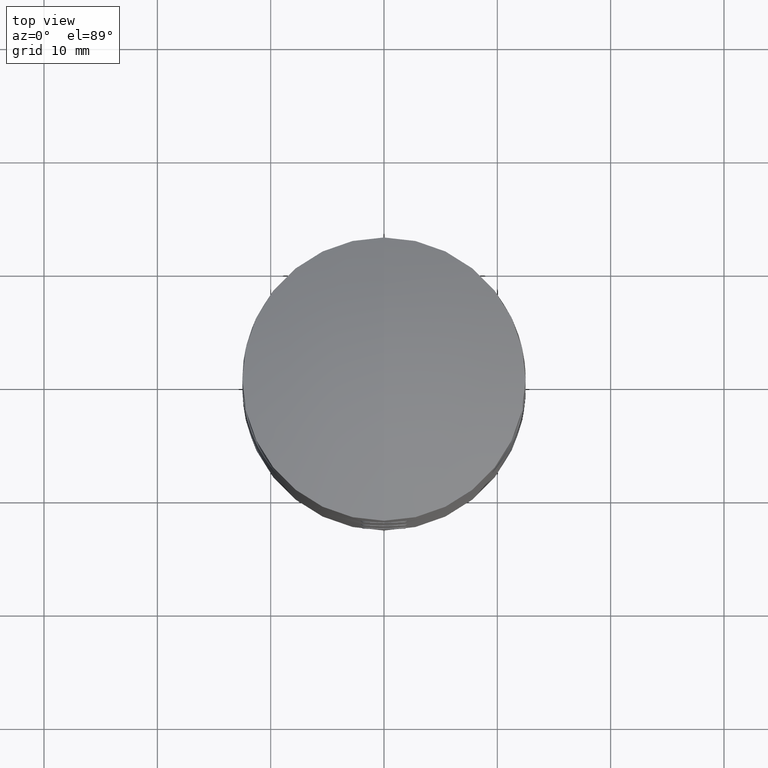
[diagram: clean part render]
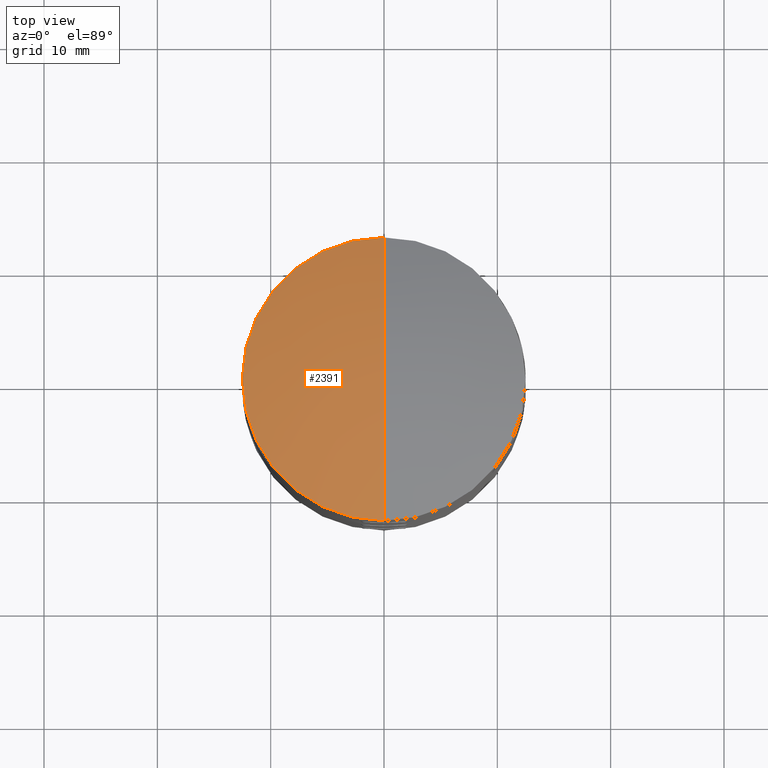
[diagram: same view with one face highlighted and labeled with its STEP entity id]
A machine part, top view. The second image highlights one B-rep face of the part: STEP entity #2391.
In plain terms, the highlighted spherical surface has radius 37 mm.
Its self-contained STEP definition (entity closure, byte-faithful):
#373 = EDGE_LOOP ( 'NONE', ( #5545, #7374, #1381, #18447 ) ) ;
#872 = DIRECTION ( 'NONE',  ( 0.000000000000000000, 1.000000000000000000, 0.000000000000000000 ) ) ;
#1028 = EDGE_CURVE ( 'NONE', #5774, #12091, #11697, .T. ) ;
#1080 = DIRECTION ( 'NONE',  ( -1.224646799147353207E-16, 1.000000000000000000, 0.000000000000000000 ) ) ;
#1245 = AXIS2_PLACEMENT_3D ( 'NONE', #17622, #14626, #13312 ) ;
#1381 = ORIENTED_EDGE ( 'NONE', *, *, #7763, .F. ) ;
#2059 = DIRECTION ( 'NONE',  ( -0.000000000000000000, -0.000000000000000000, -1.000000000000000000 ) ) ;
#2391 = ADVANCED_FACE ( 'NONE', ( #2896 ), #5808, .T. ) ;
#2462 = DIRECTION ( 'NONE',  ( 1.000000000000000000, 1.224646799147353207E-16, -0.000000000000000000 ) ) ;
#2649 = CIRCLE ( 'NONE', #1245, 12.49999999999999822 ) ;
#2896 = FACE_OUTER_BOUND ( 'NONE', #373, .T. ) ;
#3909 = DIRECTION ( 'NONE',  ( 0.000000000000000000, 0.000000000000000000, 1.000000000000000000 ) ) ;
#3914 = EDGE_CURVE ( 'NONE', #12091, #17449, #2649, .T. ) ;
#4022 = AXIS2_PLACEMENT_3D ( 'NONE', #12107, #2059, #9372 ) ;
#5545 = ORIENTED_EDGE ( 'NONE', *, *, #1028, .F. ) ;
#5774 = VERTEX_POINT ( 'NONE', #16245 ) ;
#5808 = SPHERICAL_SURFACE ( 'NONE', #9847, 37.00000000000000000 ) ;
#6785 = CARTESIAN_POINT ( 'NONE',  ( 0.000000000000000000, 8.964901825574695679E-16, -24.99999999999999645 ) ) ;
#7374 = ORIENTED_EDGE ( 'NONE', *, *, #17410, .T. ) ;
#7763 = EDGE_CURVE ( 'NONE', #17449, #13026, #15191, .T. ) ;
#8135 = CARTESIAN_POINT ( 'NONE',  ( -12.49999999999999822, 8.964901825574695679E-16, 9.824560298731698893 ) ) ;
#9128 = CARTESIAN_POINT ( 'NONE',  ( 1.530808498934191127E-15, -12.49999999999999645, 9.824560298731698893 ) ) ;
#9372 = DIRECTION ( 'NONE',  ( -1.000000000000000000, 0.000000000000000000, 0.000000000000000000 ) ) ;
#9823 = CARTESIAN_POINT ( 'NONE',  ( 0.000000000000000000, 8.964901825574695679E-16, -24.99999999999999645 ) ) ;
#9847 = AXIS2_PLACEMENT_3D ( 'NONE', #6785, #12599, #872 ) ;
#10308 = AXIS2_PLACEMENT_3D ( 'NONE', #9823, #2462, #1080 ) ;
#11697 = CIRCLE ( 'NONE', #10308, 37.00000000000000000 ) ;
#12091 = VERTEX_POINT ( 'NONE', #9128 ) ;
#12107 = CARTESIAN_POINT ( 'NONE',  ( 0.000000000000000000, 8.964901825574695679E-16, 9.824560298731698893 ) ) ;
#12599 = DIRECTION ( 'NONE',  ( 1.000000000000000000, 0.000000000000000000, 0.000000000000000000 ) ) ;
#12637 = CARTESIAN_POINT ( 'NONE',  ( 0.000000000000000000, 12.50000000000000000, 9.824560298731698893 ) ) ;
#13026 = VERTEX_POINT ( 'NONE', #12637 ) ;
#13312 = DIRECTION ( 'NONE',  ( -1.000000000000000000, 0.000000000000000000, 0.000000000000000000 ) ) ;
#13826 = DIRECTION ( 'NONE',  ( -1.000000000000000000, 0.000000000000000000, 0.000000000000000000 ) ) ;
#14536 = CIRCLE ( 'NONE', #16519, 37.00000000000000000 ) ;
#14626 = DIRECTION ( 'NONE',  ( -0.000000000000000000, -0.000000000000000000, -1.000000000000000000 ) ) ;
#15191 = CIRCLE ( 'NONE', #4022, 12.49999999999999822 ) ;
#16245 = CARTESIAN_POINT ( 'NONE',  ( 0.000000000000000000, 3.162086760980072767E-15, 12.00000000000000000 ) ) ;
#16519 = AXIS2_PLACEMENT_3D ( 'NONE', #18205, #13826, #3909 ) ;
#17410 = EDGE_CURVE ( 'NONE', #5774, #13026, #14536, .T. ) ;
#17449 = VERTEX_POINT ( 'NONE', #8135 ) ;
#17622 = CARTESIAN_POINT ( 'NONE',  ( 0.000000000000000000, 8.964901825574695679E-16, 9.824560298731698893 ) ) ;
#18205 = CARTESIAN_POINT ( 'NONE',  ( 0.000000000000000000, 8.964901825574695679E-16, -24.99999999999999645 ) ) ;
#18447 = ORIENTED_EDGE ( 'NONE', *, *, #3914, .F. ) ;